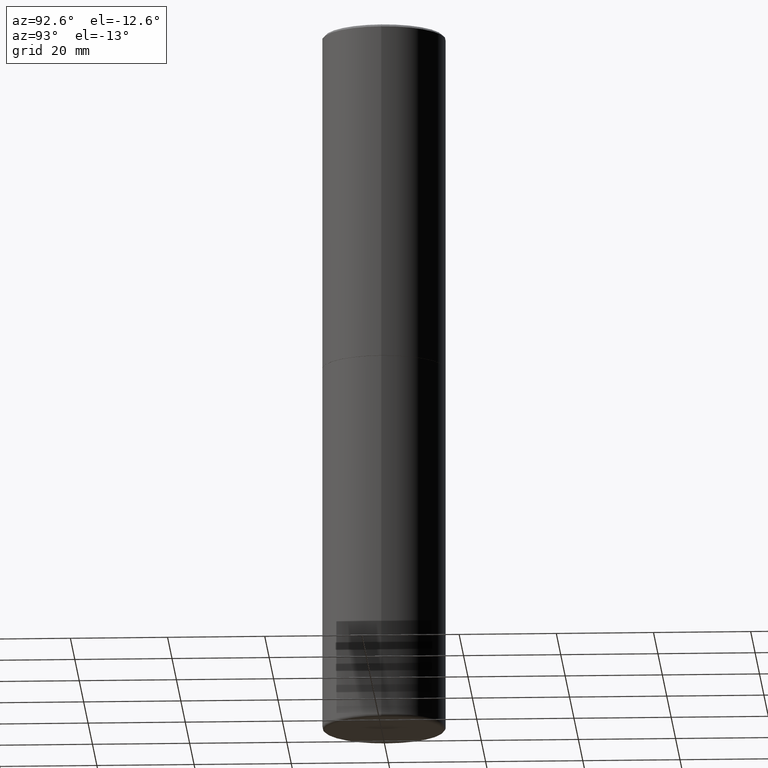
[diagram: clean part render]
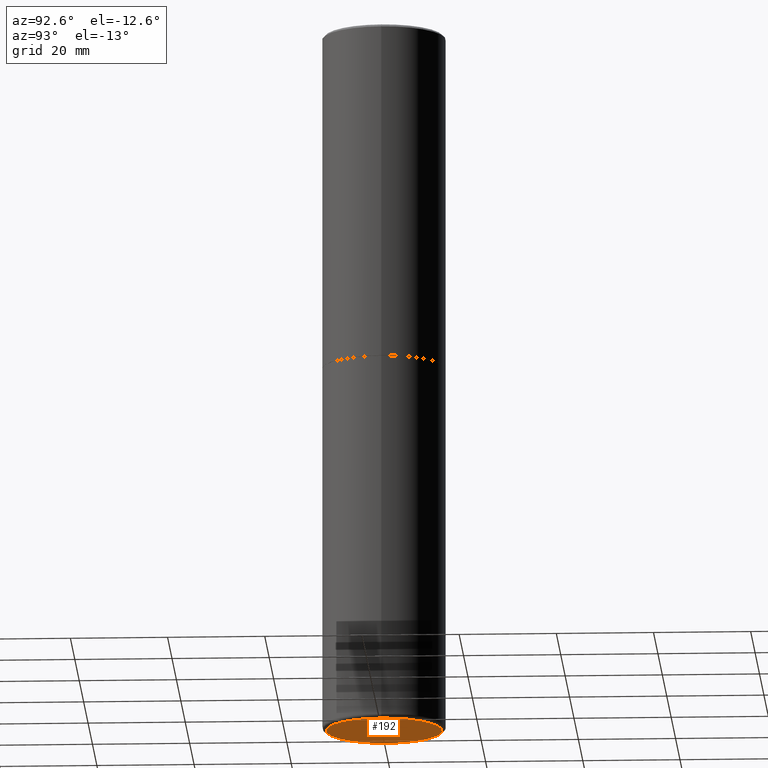
[diagram: same view with one face highlighted and labeled with its STEP entity id]
A machine part, auxiliary view. The second image highlights one B-rep face of the part: STEP entity #192.
In plain terms, the highlighted planar face has unit normal (0, -0, -1).
Its self-contained STEP definition (entity closure, byte-faithful):
#5 = CIRCLE ( 'NONE', #96, 0.4699999999999999734 ) ;
#12 = CARTESIAN_POINT ( 'NONE',  ( 1.406144563556453319E-28, -2.007601769834808306E-14, -5.749999999999998224 ) ) ;
#13 = DIRECTION ( 'NONE',  ( 1.000000000000000000, -6.982962677686271444E-15, 0.000000000000000000 ) ) ;
#15 = CIRCLE ( 'NONE', #195, 0.4699999999999999734 ) ;
#46 = ORIENTED_EDGE ( 'NONE', *, *, #232, .F. ) ;
#65 = EDGE_CURVE ( 'NONE', #132, #347, #15, .T. ) ;
#96 = AXIS2_PLACEMENT_3D ( 'NONE', #349, #302, #341 ) ;
#122 = ORIENTED_EDGE ( 'NONE', *, *, #65, .F. ) ;
#132 = VERTEX_POINT ( 'NONE', #216 ) ;
#133 = CARTESIAN_POINT ( 'NONE',  ( 2.339670157939436804E-28, -6.707399857012327486E-15, -5.749999999999998224 ) ) ;
#141 = DIRECTION ( 'NONE',  ( -2.445468806185136597E-29, 3.491481338843145583E-15, 1.000000000000000000 ) ) ;
#143 = CARTESIAN_POINT ( 'NONE',  ( -0.4699999999999999734, -1.657751320982894820E-14, -5.749999999999998224 ) ) ;
#182 = DIRECTION ( 'NONE',  ( -1.000000000000000000, 6.982962677686265922E-15, -4.876176775795935793E-29 ) ) ;
#192 = ADVANCED_FACE ( 'NONE', ( #257 ), #392, .T. ) ;
#195 = AXIS2_PLACEMENT_3D ( 'NONE', #12, #141, #13 ) ;
#216 = CARTESIAN_POINT ( 'NONE',  ( 0.4699999999999999734, -2.335801015686062967E-14, -5.749999999999998224 ) ) ;
#228 = EDGE_LOOP ( 'NONE', ( #122, #46 ) ) ;
#232 = EDGE_CURVE ( 'NONE', #347, #132, #5, .T. ) ;
#257 = FACE_OUTER_BOUND ( 'NONE', #228, .T. ) ;
#302 = DIRECTION ( 'NONE',  ( -2.445468806185136597E-29, 3.491481338843145583E-15, 1.000000000000000000 ) ) ;
#326 = DIRECTION ( 'NONE',  ( 2.438088387897960049E-29, -3.491481338843145188E-15, -1.000000000000000000 ) ) ;
#341 = DIRECTION ( 'NONE',  ( 1.000000000000000000, -6.982962677686271444E-15, 0.000000000000000000 ) ) ;
#347 = VERTEX_POINT ( 'NONE', #143 ) ;
#349 = CARTESIAN_POINT ( 'NONE',  ( 1.406144563556453319E-28, -2.007601769834808306E-14, -5.749999999999998224 ) ) ;
#392 = PLANE ( 'NONE',  #396 ) ;
#396 = AXIS2_PLACEMENT_3D ( 'NONE', #133, #326, #182 ) ;